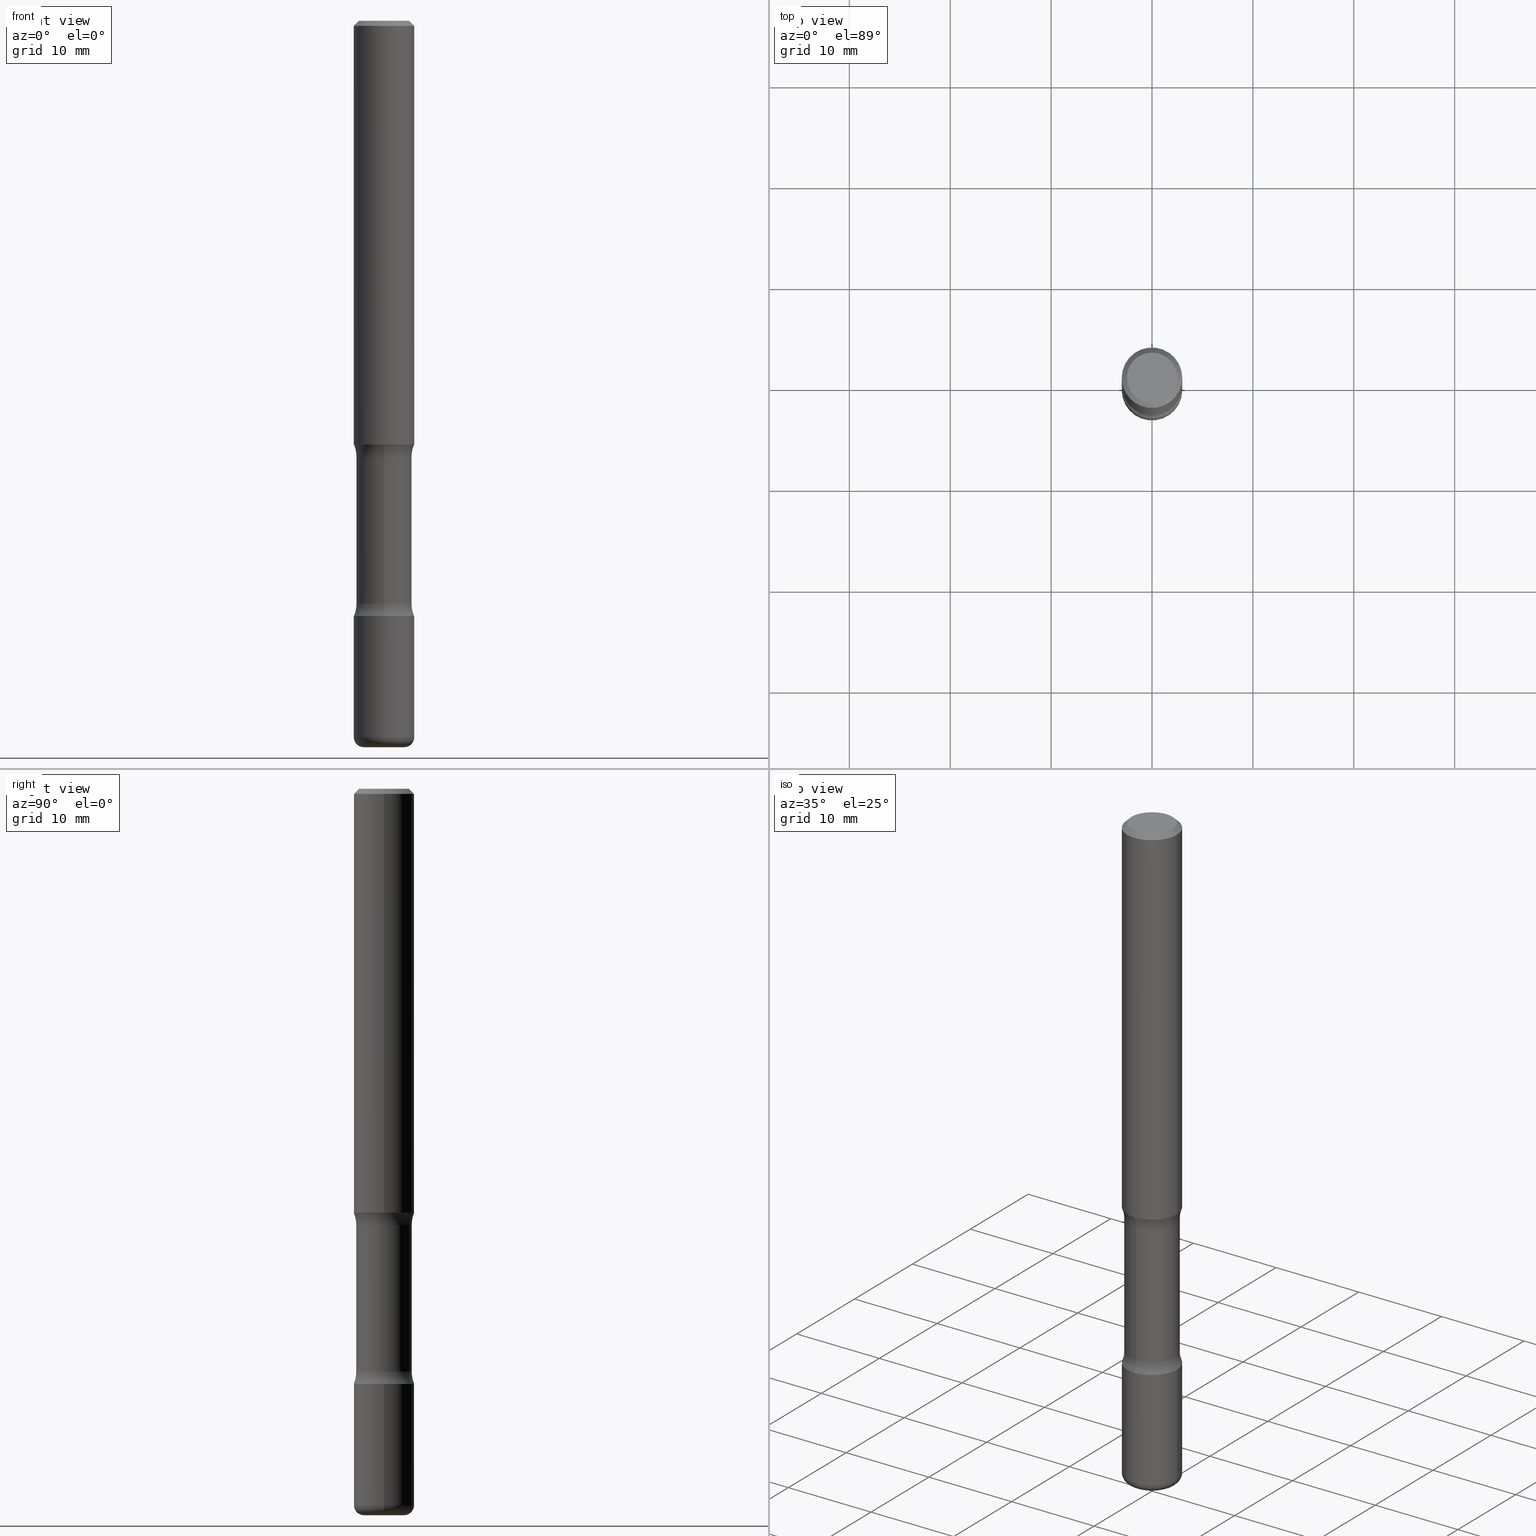
[diagram: canonical four-view strip — front | top / right | iso, engineering-drawing reading convention]
A machine part, canonical four-view strip (front | top / right | iso — engineering-drawing reading convention). The complete STEP part file that produces these views, byte-faithful:
ISO-10303-21;
HEADER;
FILE_DESCRIPTION (( 'STEP AP203' ),
    '1' );
FILE_NAME ('44772.STEP',
    '2024-03-02T03:04:16',
    ( '' ),
    ( '' ),
    'SwSTEP 2.0',
    'SolidWorks 2023',
    '' );
FILE_SCHEMA (( 'CONFIG_CONTROL_DESIGN' ));
ENDSEC;

DATA;
#1 = ORIENTED_EDGE ( 'NONE', *, *, #16, .T. ) ;
#2 = AXIS2_PLACEMENT_3D ( 'NONE', #12, #393, #352 ) ;
#3 = CIRCLE ( 'NONE', #70, 0.1250000000000000278 ) ;
#4 = FACE_OUTER_BOUND ( 'NONE', #400, .T. ) ;
#5 = SHAPE_DEFINITION_REPRESENTATION ( #55, #185 ) ;
#6 = ORIENTED_EDGE ( 'NONE', *, *, #87, .F. ) ;
#7 = FACE_OUTER_BOUND ( 'NONE', #532, .T. ) ;
#8 = PERSON_AND_ORGANIZATION ( #521, #34 ) ;
#9 = CLOSED_SHELL ( 'NONE', ( #470, #161, #240, #389, #392, #497 ) ) ;
#10 = AXIS2_PLACEMENT_3D ( 'NONE', #500, #410, #189 ) ;
#11 = DIRECTION ( 'NONE',  ( 1.000000000000000000, -6.982962677686266711E-15, 0.000000000000000000 ) ) ;
#12 = CARTESIAN_POINT ( 'NONE',  ( 6.967694114101516369E-29, -9.845730853203571031E-15, -2.834599999999998676 ) ) ;
#13 = CARTESIAN_POINT ( 'NONE',  ( 4.043582671027119838E-29, -5.773164393777136338E-15, -1.653499999999998638 ) ) ;
#14 = DIRECTION ( 'NONE',  ( 6.982962677686265922E-15, 1.000000000000000000, -2.313165108945183485E-15 ) ) ;
#15 = CLOSED_SHELL ( 'NONE', ( #286, #91, #530, #109, #23, #227 ) ) ;
#16 = EDGE_CURVE ( 'NONE', #522, #451, #472, .T. ) ;
#17 = CARTESIAN_POINT ( 'NONE',  ( -0.1181000000000009265, 8.391509709326849024E-16, -5.809262341591088625E-30 ) ) ;
#18 = ORIENTED_EDGE ( 'NONE', *, *, #249, .T. ) ;
#19 = CIRCLE ( 'NONE', #377, 0.1181000000000010514 ) ;
#20 = AXIS2_PLACEMENT_3D ( 'NONE', #35, #287, #551 ) ;
#21 = CARTESIAN_POINT ( 'NONE',  ( -0.1181000000000010514, -2.082346039344310577E-15, -1.653499999999998638 ) ) ;
#22 = CYLINDRICAL_SURFACE ( 'NONE', #518, 0.1181000000000001077 ) ;
#23 = ADVANCED_FACE ( 'NONE', ( #260 ), #49, .F. ) ;
#24 = EDGE_LOOP ( 'NONE', ( #477, #280 ) ) ;
#25 =( CONVERSION_BASED_UNIT ( 'INCH', #335 ) LENGTH_UNIT ( ) NAMED_UNIT ( #315 ) );
#26 = CARTESIAN_POINT ( 'NONE',  ( 1.627379452034826207E-15, 0.2330499999999940952, -1.702607000519273717 ) ) ;
#27 = VERTEX_POINT ( 'NONE', #99 ) ;
#28 = APPROVAL ( #45, 'UNSPECIFIED' ) ;
#29 = DIRECTION ( 'NONE',  ( 2.515355941959131519E-29, -3.391398982686043410E-15, -1.000000000000000000 ) ) ;
#30 = DIRECTION ( 'NONE',  ( -2.445468806185136597E-29, 3.491481338843145583E-15, 1.000000000000000000 ) ) ;
#31 = AXIS2_PLACEMENT_3D ( 'NONE', #533, #103, #58 ) ;
#32 = ORIENTED_EDGE ( 'NONE', *, *, #252, .F. ) ;
#33 = VECTOR ( 'NONE', #290, 39.37007874015748143 ) ;
#34 = ORGANIZATION ( 'UNSPECIFIED', 'UNSPECIFIED', '' ) ;
#35 = CARTESIAN_POINT ( 'NONE',  ( 4.890937612370273159E-31, -6.982962677686291609E-17, -0.02000000000000000042 ) ) ;
#36 = ORIENTED_EDGE ( 'NONE', *, *, #353, .F. ) ;
#37 = CARTESIAN_POINT ( 'NONE',  ( 7.545091173240708723E-16, 0.1080499999999901678, -2.834599999999999120 ) ) ;
#38 = PLANE ( 'NONE',  #536 ) ;
#39 = CC_DESIGN_PERSON_AND_ORGANIZATION_ASSIGNMENT ( #527, #170, ( #417 ) ) ;
#40 = CARTESIAN_POINT ( 'NONE',  ( 0.1181000000000007877, -8.800544403136861623E-16, -0.02000000000000000042 ) ) ;
#41 = VECTOR ( 'NONE', #374, 39.37007874015748143 ) ;
#42 = AXIS2_PLACEMENT_3D ( 'NONE', #250, #296, #164 ) ;
#43 = PLANE ( 'NONE',  #330 ) ;
#44 = EDGE_CURVE ( 'NONE', #172, #160, #421, .T. ) ;
#45 = APPROVAL_STATUS ( 'not_yet_approved' ) ;
#46 = ORIENTED_EDGE ( 'NONE', *, *, #548, .F. ) ;
#47 = DIRECTION ( 'NONE',  ( -2.445468806185136877E-29, 3.491481338843145188E-15, 1.000000000000000000 ) ) ;
#48 = COORDINATED_UNIVERSAL_TIME_OFFSET ( 5, 0, .BEHIND. ) ;
#49 = PLANE ( 'NONE',  #274 ) ;
#50 = AXIS2_PLACEMENT_3D ( 'NONE', #495, #75, #269 ) ;
#51 = CARTESIAN_POINT ( 'NONE',  ( 5.536399814345542936E-29, -7.972704777866051071E-15, -2.273692999480724453 ) ) ;
#52 = APPLICATION_CONTEXT ( 'configuration controlled 3d designs of mechanical parts and assemblies' ) ;
#53 = ORIENTED_EDGE ( 'NONE', *, *, #373, .T. ) ;
#54 = DIRECTION ( 'NONE',  ( 1.000000000000000000, -6.982962677686269077E-15, 0.000000000000000000 ) ) ;
#55 = PRODUCT_DEFINITION_SHAPE ( 'NONE', 'NONE',  #362 ) ;
#56 = DIRECTION ( 'NONE',  ( -2.445468806185136877E-29, 3.491481338843145188E-15, 1.000000000000000000 ) ) ;
#57 = DIRECTION ( 'NONE',  ( 6.982962677686265922E-15, 1.000000000000000000, -3.391398982686043804E-15 ) ) ;
#58 = DIRECTION ( 'NONE',  ( 6.982962677686265922E-15, 1.000000000000000000, -2.528318365260770920E-15 ) ) ;
#59 = VECTOR ( 'NONE', #358, 39.37007874015748143 ) ;
#60 = AXIS2_PLACEMENT_3D ( 'NONE', #326, #511, #237 ) ;
#61 = LINE ( 'NONE', #314, #367 ) ;
#62 = ORIENTED_EDGE ( 'NONE', *, *, #124, .F. ) ;
#63 = CARTESIAN_POINT ( 'NONE',  ( 5.680334943006831795E-29, -8.110012853864854101E-15, -2.322799999999998644 ) ) ;
#64 = LINE ( 'NONE', #17, #59 ) ;
#65 = ORIENTED_EDGE ( 'NONE', *, *, #349, .F. ) ;
#66 = AXIS2_PLACEMENT_3D ( 'NONE', #509, #123, #297 ) ;
#67 = EDGE_CURVE ( 'NONE', #198, #361, #347, .T. ) ;
#68 = DIRECTION ( 'NONE',  ( 6.982962677686265922E-15, 1.000000000000000000, -3.391398982686043804E-15 ) ) ;
#69 = ORIENTED_EDGE ( 'NONE', *, *, #539, .T. ) ;
#70 = AXIS2_PLACEMENT_3D ( 'NONE', #420, #121, #281 ) ;
#71 = EDGE_CURVE ( 'NONE', #160, #550, #77, .T. ) ;
#72 = DIRECTION ( 'NONE',  ( 1.000000000000000000, -6.982962677686266711E-15, 0.000000000000000000 ) ) ;
#73 = ORIENTED_EDGE ( 'NONE', *, *, #252, .T. ) ;
#74 = DIRECTION ( 'NONE',  ( 2.438088387897960049E-29, -3.491481338843145188E-15, -1.000000000000000000 ) ) ;
#75 = DIRECTION ( 'NONE',  ( 2.515355941959131519E-29, -3.391398982686043410E-15, -1.000000000000000000 ) ) ;
#76 = EDGE_LOOP ( 'NONE', ( #327, #437, #447, #482 ) ) ;
#77 = CIRCLE ( 'NONE', #31, 0.1080500000000000071 ) ;
#78 = ORIENTED_EDGE ( 'NONE', *, *, #71, .T. ) ;
#79 = TOROIDAL_SURFACE ( 'NONE', #425, 0.2330500000000000627, 0.1250000000000000278 ) ;
#80 = LINE ( 'NONE', #195, #127 ) ;
#81 = DIRECTION ( 'NONE',  ( 1.000000000000000000, -6.982962677686265922E-15, 4.876176775795935793E-29 ) ) ;
#82 = CARTESIAN_POINT ( 'NONE',  ( 6.835574407048691801E-29, -9.759388638334358515E-15, -2.795199999999999019 ) ) ;
#83 = ADVANCED_FACE ( 'NONE', ( #177 ), #391, .F. ) ;
#84 = DIRECTION ( 'NONE',  ( 1.000000000000000000, -6.982962677686268288E-15, 0.000000000000000000 ) ) ;
#85 = CARTESIAN_POINT ( 'NONE',  ( -8.102248135367786879E-16, -0.1181000000000059780, -1.653499999999998193 ) ) ;
#86 = DIRECTION ( 'NONE',  ( 2.515355941959131519E-29, -3.391398982686043410E-15, -1.000000000000000000 ) ) ;
#87 = EDGE_CURVE ( 'NONE', #205, #414, #440, .T. ) ;
#88 = VECTOR ( 'NONE', #47, 39.37007874015748143 ) ;
#89 = DATE_AND_TIME ( #291, #493 ) ;
#90 = DIRECTION ( 'NONE',  ( 1.000000000000000000, -6.982962677686268288E-15, 0.000000000000000000 ) ) ;
#91 = ADVANCED_FACE ( 'NONE', ( #398 ), #403, .T. ) ;
#92 = DIRECTION ( 'NONE',  ( 6.982962677686265922E-15, 1.000000000000000000, -2.528318365260770525E-15 ) ) ;
#93 = CALENDAR_DATE ( 2024, 1, 3 ) ;
#94 = ORIENTED_EDGE ( 'NONE', *, *, #102, .T. ) ;
#95 = PLANE ( 'NONE',  #242 ) ;
#96 = DIRECTION ( 'NONE',  ( 2.438088387897960049E-29, -3.491481338843145188E-15, -1.000000000000000000 ) ) ;
#97 = PERSON_AND_ORGANIZATION_ROLE ( 'design_owner' ) ;
#98 = VERTEX_POINT ( 'NONE', #494 ) ;
#99 = CARTESIAN_POINT ( 'NONE',  ( -0.09810000000000086706, 7.199434520694596262E-16, -4.695363739110943904E-17 ) ) ;
#100 = CIRCLE ( 'NONE', #197, 0.1181000000000007877 ) ;
#101 = CONICAL_SURFACE ( 'NONE', #20, 0.1181000000000007877, 0.7853981633974476129 ) ;
#102 = EDGE_CURVE ( 'NONE', #235, #172, #126, .T. ) ;
#103 = DIRECTION ( 'NONE',  ( 2.515355941959131519E-29, -3.391398982686043410E-15, -1.000000000000000000 ) ) ;
#104 = FACE_OUTER_BOUND ( 'NONE', #145, .T. ) ;
#105 = AXIS2_PLACEMENT_3D ( 'NONE', #63, #346, #305 ) ;
#106 = CARTESIAN_POINT ( 'NONE',  ( 4.120328796601531988E-29, -6.006690946356916109E-15, -1.702607000519273051 ) ) ;
#107 = CIRCLE ( 'NONE', #513, 0.1181000000000000660 ) ;
#108 = DIRECTION ( 'NONE',  ( 2.515355941959131519E-29, -3.391398982686043410E-15, -1.000000000000000000 ) ) ;
#109 = ADVANCED_FACE ( 'NONE', ( #4 ), #43, .F. ) ;
#110 = CC_DESIGN_APPROVAL ( #443, ( #362 ) ) ;
#111 = VERTEX_POINT ( 'NONE', #85 ) ;
#112 = CARTESIAN_POINT ( 'NONE',  ( 4.115981327510148751E-29, -6.012916769538350398E-15, -1.702607000519273051 ) ) ;
#113 = ORIENTED_EDGE ( 'NONE', *, *, #506, .T. ) ;
#114 = FACE_OUTER_BOUND ( 'NONE', #118, .T. ) ;
#115 = EDGE_CURVE ( 'NONE', #465, #205, #275, .T. ) ;
#116 = CYLINDRICAL_SURFACE ( 'NONE', #253, 0.1181000000000009265 ) ;
#117 = TOROIDAL_SURFACE ( 'NONE', #385, 0.07870000000000014484, 0.03940000000000033753 ) ;
#118 = EDGE_LOOP ( 'NONE', ( #552, #325, #239, #542 ) ) ;
#119 = DIRECTION ( 'NONE',  ( 1.000000000000000000, -6.982962677686261189E-15, 4.883557194083111219E-29 ) ) ;
#120 = ORIENTED_EDGE ( 'NONE', *, *, #543, .T. ) ;
#121 = DIRECTION ( 'NONE',  ( 1.000000000000000000, -6.860497997771530774E-15, 4.842024534995332075E-29 ) ) ;
#122 = ORIENTED_EDGE ( 'NONE', *, *, #467, .T. ) ;
#123 = DIRECTION ( 'NONE',  ( -2.445468806185136597E-29, 3.491481338843145583E-15, 1.000000000000000000 ) ) ;
#124 = EDGE_CURVE ( 'NONE', #361, #198, #180, .T. ) ;
#125 = AXIS2_PLACEMENT_3D ( 'NONE', #490, #268, #246 ) ;
#126 = CIRCLE ( 'NONE', #173, 0.1080500000000000210 ) ;
#127 = VECTOR ( 'NONE', #505, 39.37007874015748854 ) ;
#128 = APPROVAL_ROLE ( '' ) ;
#129 = PRODUCT_RELATED_PRODUCT_CATEGORY ( 'detail', '', ( #382 ) ) ;
#130 = DIRECTION ( 'NONE',  ( -2.445468806185136597E-29, 3.491481338843145583E-15, 1.000000000000000000 ) ) ;
#131 = COORDINATED_UNIVERSAL_TIME_OFFSET ( 5, 0, .BEHIND. ) ;
#132 = CIRCLE ( 'NONE', #60, 0.1250000000000000278 ) ;
#133 = VERTEX_POINT ( 'NONE', #422 ) ;
#134 = APPROVAL_DATE_TIME ( #520, #28 ) ;
#135 = ORIENTED_EDGE ( 'NONE', *, *, #424, .F. ) ;
#136 = APPROVAL_DATE_TIME ( #390, #443 ) ;
#137 = VERTEX_POINT ( 'NONE', #288 ) ;
#138 = CIRCLE ( 'NONE', #42, 0.1181000000000001354 ) ;
#139 = AXIS2_PLACEMENT_3D ( 'NONE', #202, #74, #462 ) ;
#140 = FACE_OUTER_BOUND ( 'NONE', #332, .T. ) ;
#141 = ADVANCED_FACE ( 'NONE', ( #339 ), #38, .F. ) ;
#142 = DIRECTION ( 'NONE',  ( -1.000000000000000000, 6.982962677686265922E-15, -4.876176775795935793E-29 ) ) ;
#143 = ORIENTED_EDGE ( 'NONE', *, *, #303, .T. ) ;
#144 = DIRECTION ( 'NONE',  ( 0.7071067811865469066, -7.319954787623252890E-15, -0.7071067811865479058 ) ) ;
#145 = EDGE_LOOP ( 'NONE', ( #294, #62 ) ) ;
#146 = FACE_OUTER_BOUND ( 'NONE', #211, .T. ) ;
#147 = ORIENTED_EDGE ( 'NONE', *, *, #454, .T. ) ;
#148 = CARTESIAN_POINT ( 'NONE',  ( 4.890937612370273159E-31, -6.982962677686291609E-17, -0.02000000000000000042 ) ) ;
#149 = ORIENTED_EDGE ( 'NONE', *, *, #486, .T. ) ;
#150 = DIRECTION ( 'NONE',  ( 7.105427357601001859E-15, 1.000000000000000000, -3.491481338843145583E-15 ) ) ;
#151 = DIRECTION ( 'NONE',  ( -2.445468806185136877E-29, 3.491481338843145188E-15, 1.000000000000000000 ) ) ;
#152 = CIRCLE ( 'NONE', #557, 0.1181000000000000660 ) ;
#153 = EDGE_LOOP ( 'NONE', ( #459, #1, #53, #496 ) ) ;
#154 = DIRECTION ( 'NONE',  ( 6.982962677686265922E-15, 1.000000000000000000, -2.313165108945182302E-15 ) ) ;
#155 = VERTEX_POINT ( 'NONE', #519 ) ;
#156 = CARTESIAN_POINT ( 'NONE',  ( 8.246878922347888889E-16, 0.1180999999999942929, -1.653499999999999082 ) ) ;
#157 = EDGE_CURVE ( 'NONE', #535, #111, #138, .T. ) ;
#158 = ORIENTED_EDGE ( 'NONE', *, *, #115, .T. ) ;
#159 = CARTESIAN_POINT ( 'NONE',  ( -0.1181000000000003020, -8.920237667401677951E-15, -2.795199999999999019 ) ) ;
#160 = VERTEX_POINT ( 'NONE', #471 ) ;
#161 = ADVANCED_FACE ( 'NONE', ( #475 ), #117, .T. ) ;
#162 = CIRCLE ( 'NONE', #405, 0.1080500000000000071 ) ;
#163 = LOCAL_TIME ( 22, 4, 16.00000000000000000, #431 ) ;
#164 = DIRECTION ( 'NONE',  ( 6.982962677686265922E-15, 1.000000000000000000, -2.313165108945182302E-15 ) ) ;
#165 = EDGE_CURVE ( 'NONE', #137, #98, #152, .T. ) ;
#166 = PERSON_AND_ORGANIZATION ( #521, #34 ) ;
#167 = SECURITY_CLASSIFICATION_LEVEL ( 'unclassified' ) ;
#168 = VECTOR ( 'NONE', #56, 39.37007874015748143 ) ;
#169 = DIRECTION ( 'NONE',  ( -2.445468806185136597E-29, 3.491481338843145583E-15, 1.000000000000000000 ) ) ;
#170 = PERSON_AND_ORGANIZATION_ROLE ( 'creator' ) ;
#171 = CIRCLE ( 'NONE', #397, 0.03940000000000033753 ) ;
#172 = VERTEX_POINT ( 'NONE', #348 ) ;
#173 = AXIS2_PLACEMENT_3D ( 'NONE', #106, #473, #92 ) ;
#174 = EDGE_LOOP ( 'NONE', ( #456, #46, #69, #229 ) ) ;
#175 = DIRECTION ( 'NONE',  ( 6.982962677686265922E-15, 1.000000000000000000, -3.391398982686043804E-15 ) ) ;
#176 = CALENDAR_DATE ( 2024, 1, 3 ) ;
#177 = FACE_OUTER_BOUND ( 'NONE', #388, .T. ) ;
#178 = CLOSED_SHELL ( 'NONE', ( #378, #183, #254, #338, #141, #83, #201, #179 ) ) ;
#179 = ADVANCED_FACE ( 'NONE', ( #219 ), #261, .T. ) ;
#180 = CIRCLE ( 'NONE', #302, 0.07870000000000014484 ) ;
#181 = DIRECTION ( 'NONE',  ( -1.000000000000000000, 6.982962677686266711E-15, 0.000000000000000000 ) ) ;
#182 = CARTESIAN_POINT ( 'NONE',  ( -7.757508110979757408E-16, -0.1080500000000060301, -1.702607000519272828 ) ) ;
#183 = ADVANCED_FACE ( 'NONE', ( #7 ), #222, .F. ) ;
#184 = DIRECTION ( 'NONE',  ( -2.445468806185136597E-29, 3.491481338843145583E-15, 1.000000000000000000 ) ) ;
#185 = ADVANCED_BREP_SHAPE_REPRESENTATION ( '44772', ( #371, #191, #375, #445 ), #453 ) ;
#186 = CARTESIAN_POINT ( 'NONE',  ( 4.115981327510148751E-29, -6.012916769538350398E-15, -1.702607000519273051 ) ) ;
#187 = EDGE_LOOP ( 'NONE', ( #341, #94, #355, #32 ) ) ;
#188 = CIRCLE ( 'NONE', #463, 0.1181000000000007877 ) ;
#189 = DIRECTION ( 'NONE',  ( 6.982962677686265922E-15, 1.000000000000000000, -2.528318365260770525E-15 ) ) ;
#190 = CC_DESIGN_APPROVAL ( #426, ( #417 ) ) ;
#191 = MANIFOLD_SOLID_BREP ( 'Body-Move/Copy2[2]', #15 ) ;
#192 = CARTESIAN_POINT ( 'NONE',  ( 6.835574407048691801E-29, -9.759388638334358515E-15, -2.795199999999999019 ) ) ;
#193 = ORIENTED_EDGE ( 'NONE', *, *, #157, .T. ) ;
#194 = ORIENTED_EDGE ( 'NONE', *, *, #560, .T. ) ;
#195 = CARTESIAN_POINT ( 'NONE',  ( -0.1181000000000007877, 7.548582654578905850E-16, -0.02000000000000000042 ) ) ;
#196 = CARTESIAN_POINT ( 'NONE',  ( -0.07870000000000014484, -9.128996768721627656E-15, -2.834600000000000009 ) ) ;
#197 = AXIS2_PLACEMENT_3D ( 'NONE', #220, #184, #11 ) ;
#198 = VERTEX_POINT ( 'NONE', #523 ) ;
#199 = CARTESIAN_POINT ( 'NONE',  ( 5.680334943006831795E-29, -8.110012853864854101E-15, -2.322799999999998644 ) ) ;
#200 = AXIS2_PLACEMENT_3D ( 'NONE', #409, #366, #549 ) ;
#201 = ADVANCED_FACE ( 'NONE', ( #140 ), #79, .F. ) ;
#202 = CARTESIAN_POINT ( 'NONE',  ( 5.680334943006831795E-29, -8.110012853864854101E-15, -2.322799999999998644 ) ) ;
#203 = ORIENTED_EDGE ( 'NONE', *, *, #265, .T. ) ;
#204 =( NAMED_UNIT ( * ) SI_UNIT ( $, .STERADIAN. ) SOLID_ANGLE_UNIT ( ) );
#205 = VERTEX_POINT ( 'NONE', #306 ) ;
#206 = DIRECTION ( 'NONE',  ( 2.515355941959131519E-29, -3.391398982686043015E-15, -1.000000000000000000 ) ) ;
#207 = EDGE_CURVE ( 'NONE', #198, #451, #492, .T. ) ;
#208 = AXIS2_PLACEMENT_3D ( 'NONE', #186, #319, #68 ) ;
#209 = APPROVAL_DATE_TIME ( #428, #426 ) ;
#210 = DATE_AND_TIME ( #176, #313 ) ;
#211 = EDGE_LOOP ( 'NONE', ( #474, #507, #344, #6 ) ) ;
#212 = CYLINDRICAL_SURFACE ( 'NONE', #284, 0.1181000000000009265 ) ;
#213 = AXIS2_PLACEMENT_3D ( 'NONE', #112, #364, #458 ) ;
#214 = APPROVAL_ROLE ( '' ) ;
#215 = LOCAL_TIME ( 22, 4, 16.00000000000000000, #337 ) ;
#216 = ORIENTED_EDGE ( 'NONE', *, *, #373, .F. ) ;
#217 = APPROVAL_STATUS ( 'not_yet_approved' ) ;
#218 = DIRECTION ( 'NONE',  ( -2.445468806185136597E-29, 3.491481338843145583E-15, 1.000000000000000000 ) ) ;
#219 = FACE_OUTER_BOUND ( 'NONE', #187, .T. ) ;
#220 = CARTESIAN_POINT ( 'NONE',  ( 4.890937612370273159E-31, -6.982962677686291609E-17, -0.02000000000000000042 ) ) ;
#221 = CC_DESIGN_PERSON_AND_ORGANIZATION_ASSIGNMENT ( #166, #516, ( #417 ) ) ;
#222 = TOROIDAL_SURFACE ( 'NONE', #452, 0.2330500000000000627, 0.1250000000000000278 ) ;
#223 = SECURITY_CLASSIFICATION ( '', '', #167 ) ;
#224 = CARTESIAN_POINT ( 'NONE',  ( 0.1181000000000009265, -8.246878922347544749E-16, 5.758764772215045282E-30 ) ) ;
#225 = DIRECTION ( 'NONE',  ( 1.000000000000000000, -6.982962677686269077E-15, 0.000000000000000000 ) ) ;
#226 = ORIENTED_EDGE ( 'NONE', *, *, #207, .F. ) ;
#227 = ADVANCED_FACE ( 'NONE', ( #489 ), #212, .T. ) ;
#228 = DIRECTION ( 'NONE',  ( -2.445468806185136597E-29, 3.491481338843145583E-15, 1.000000000000000000 ) ) ;
#229 = ORIENTED_EDGE ( 'NONE', *, *, #295, .T. ) ;
#230 = DIRECTION ( 'NONE',  ( -2.445468806185136597E-29, 3.491481338843145583E-15, 1.000000000000000000 ) ) ;
#231 = EDGE_CURVE ( 'NONE', #414, #372, #100, .T. ) ;
#232 = CIRCLE ( 'NONE', #444, 0.1181000000000000660 ) ;
#233 = DIRECTION ( 'NONE',  ( 2.515355941959131519E-29, -3.391398982686043410E-15, -1.000000000000000000 ) ) ;
#234 = CC_DESIGN_SECURITY_CLASSIFICATION ( #223, ( #417 ) ) ;
#235 = VERTEX_POINT ( 'NONE', #182 ) ;
#236 = ORIENTED_EDGE ( 'NONE', *, *, #71, .F. ) ;
#237 = DIRECTION ( 'NONE',  ( -6.982962677686265133E-15, -1.000000000000000000, 0.000000000000000000 ) ) ;
#238 = FACE_OUTER_BOUND ( 'NONE', #153, .T. ) ;
#239 = ORIENTED_EDGE ( 'NONE', *, *, #207, .T. ) ;
#240 = ADVANCED_FACE ( 'NONE', ( #104 ), #95, .T. ) ;
#241 = FACE_OUTER_BOUND ( 'NONE', #257, .T. ) ;
#242 = AXIS2_PLACEMENT_3D ( 'NONE', #266, #298, #142 ) ;
#243 = ORIENTED_EDGE ( 'NONE', *, *, #87, .T. ) ;
#244 = LOCAL_TIME ( 22, 4, 16.00000000000000000, #559 ) ;
#245 = CARTESIAN_POINT ( 'NONE',  ( -0.07870000000000014484, -9.200191505291158146E-15, -2.795199999999999019 ) ) ;
#246 = DIRECTION ( 'NONE',  ( 1.000000000000000000, -6.982962677686265133E-15, 4.877161320636724192E-29 ) ) ;
#247 = CARTESIAN_POINT ( 'NONE',  ( 4.043582671027119838E-29, -5.773164393777136338E-15, -1.653499999999998638 ) ) ;
#248 = FACE_OUTER_BOUND ( 'NONE', #174, .T. ) ;
#249 = EDGE_CURVE ( 'NONE', #522, #98, #430, .T. ) ;
#250 = CARTESIAN_POINT ( 'NONE',  ( 3.996807211053585264E-29, -5.840149514753085094E-15, -1.653499999999998638 ) ) ;
#251 = PERSON_AND_ORGANIZATION ( #521, #34 ) ;
#252 = EDGE_CURVE ( 'NONE', #550, #160, #162, .T. ) ;
#253 = AXIS2_PLACEMENT_3D ( 'NONE', #449, #317, #455 ) ;
#254 = ADVANCED_FACE ( 'NONE', ( #450 ), #262, .F. ) ;
#255 = CARTESIAN_POINT ( 'NONE',  ( 6.850286386810286674E-16, 0.09810000000000086706, -3.659911380360678144E-16 ) ) ;
#256 = PERSON_AND_ORGANIZATION_ROLE ( 'creator' ) ;
#257 = EDGE_LOOP ( 'NONE', ( #147, #18, #329, #216 ) ) ;
#258 = DIRECTION ( 'NONE',  ( 2.515355941959131519E-29, -3.391398982686043410E-15, -1.000000000000000000 ) ) ;
#259 = APPROVAL_ROLE ( '' ) ;
#260 = FACE_OUTER_BOUND ( 'NONE', #499, .T. ) ;
#261 = CYLINDRICAL_SURFACE ( 'NONE', #2, 0.1080500000000000210 ) ;
#262 = TOROIDAL_SURFACE ( 'NONE', #208, 0.2330500000000000904, 0.1250000000000000278 ) ;
#263 = CC_DESIGN_APPROVAL ( #28, ( #223 ) ) ;
#264 = ORIENTED_EDGE ( 'NONE', *, *, #454, .F. ) ;
#265 = EDGE_CURVE ( 'NONE', #235, #111, #501, .T. ) ;
#266 = CARTESIAN_POINT ( 'NONE',  ( -2.055165349161050565E-28, -4.925500292857757505E-14, -2.834599999999999120 ) ) ;
#267 = AXIS2_PLACEMENT_3D ( 'NONE', #394, #230, #479 ) ;
#268 = DIRECTION ( 'NONE',  ( -2.445468806185136597E-29, 3.491481338843145583E-15, 1.000000000000000000 ) ) ;
#269 = DIRECTION ( 'NONE',  ( 6.982962677686265922E-15, 1.000000000000000000, -5.056636730521541050E-15 ) ) ;
#270 = EDGE_LOOP ( 'NONE', ( #36, #158, #243, #546 ) ) ;
#271 = CC_DESIGN_DATE_AND_TIME_ASSIGNMENT ( #89, #387, ( #223 ) ) ;
#272 = CARTESIAN_POINT ( 'NONE',  ( 5.556813357458885632E-29, -7.943471422261023875E-15, -2.273692999480724453 ) ) ;
#273 = EDGE_LOOP ( 'NONE', ( #282, #122, #236, #554 ) ) ;
#274 = AXIS2_PLACEMENT_3D ( 'NONE', #247, #525, #81 ) ;
#275 = CIRCLE ( 'NONE', #350, 0.1181000000000010514 ) ;
#276 = DIRECTION ( 'NONE',  ( -2.445468806185136597E-29, 3.491481338843145583E-15, 1.000000000000000000 ) ) ;
#277 = DIRECTION ( 'NONE',  ( 6.982962677686265922E-15, 1.000000000000000000, -2.313165108945183485E-15 ) ) ;
#278 = CC_DESIGN_DATE_AND_TIME_ASSIGNMENT ( #210, #481, ( #362 ) ) ;
#279 = DIRECTION ( 'NONE',  ( 1.000000000000000000, -6.982962677686266711E-15, 4.876176775795935793E-29 ) ) ;
#280 = ORIENTED_EDGE ( 'NONE', *, *, #486, .F. ) ;
#281 = DIRECTION ( 'NONE',  ( 6.860497997771529985E-15, 1.000000000000000000, 0.000000000000000000 ) ) ;
#282 = ORIENTED_EDGE ( 'NONE', *, *, #309, .T. ) ;
#283 = CARTESIAN_POINT ( 'NONE',  ( 5.680334943006831795E-29, -8.110012853864854101E-15, -2.322799999999998644 ) ) ;
#284 = AXIS2_PLACEMENT_3D ( 'NONE', #483, #441, #342 ) ;
#285 = EDGE_LOOP ( 'NONE', ( #359, #316, #300, #193 ) ) ;
#286 = ADVANCED_FACE ( 'NONE', ( #146 ), #116, .T. ) ;
#287 = DIRECTION ( 'NONE',  ( 2.445468806185136597E-29, -3.491481338843145583E-15, -1.000000000000000000 ) ) ;
#288 = CARTESIAN_POINT ( 'NONE',  ( 0.1181000000000000660, -8.934700746099602364E-15, -2.322799999999998644 ) ) ;
#289 = DIRECTION ( 'NONE',  ( -1.000000000000000000, 6.982962677686265922E-15, -4.876176775795935793E-29 ) ) ;
#290 = DIRECTION ( 'NONE',  ( 2.515355941959131799E-29, -3.391398982686043015E-15, -1.000000000000000000 ) ) ;
#291 = CALENDAR_DATE ( 2024, 1, 3 ) ;
#292 = CIRCLE ( 'NONE', #10, 0.1080500000000000210 ) ;
#293 = PERSON_AND_ORGANIZATION ( #521, #34 ) ;
#294 = ORIENTED_EDGE ( 'NONE', *, *, #67, .F. ) ;
#295 = EDGE_CURVE ( 'NONE', #372, #414, #188, .T. ) ;
#296 = DIRECTION ( 'NONE',  ( 2.515355941959131519E-29, -3.391398982686043410E-15, -1.000000000000000000 ) ) ;
#297 = DIRECTION ( 'NONE',  ( 1.000000000000000000, -6.982962677686265133E-15, 0.000000000000000000 ) ) ;
#298 = DIRECTION ( 'NONE',  ( 2.438088387897960049E-29, -3.491481338843145188E-15, -1.000000000000000000 ) ) ;
#299 = MECHANICAL_CONTEXT ( 'NONE', #526, 'mechanical' ) ;
#300 = ORIENTED_EDGE ( 'NONE', *, *, #349, .T. ) ;
#301 = DIRECTION ( 'NONE',  ( 2.515355941959131519E-29, -3.391398982686043410E-15, -1.000000000000000000 ) ) ;
#302 = AXIS2_PLACEMENT_3D ( 'NONE', #510, #169, #515 ) ;
#303 = EDGE_CURVE ( 'NONE', #514, #133, #528, .T. ) ;
#304 = AXIS2_PLACEMENT_3D ( 'NONE', #360, #233, #14 ) ;
#305 = DIRECTION ( 'NONE',  ( -6.982962677686265922E-15, -1.000000000000000000, 3.391398982686043015E-15 ) ) ;
#306 = CARTESIAN_POINT ( 'NONE',  ( 0.1181000000000010514, -6.597852286011891701E-15, -1.653499999999998638 ) ) ;
#307 = CARTESIAN_POINT ( 'NONE',  ( 6.931925878012387517E-29, -9.896953003084780885E-15, -2.834600000000000009 ) ) ;
#308 = CARTESIAN_POINT ( 'NONE',  ( 0.07870000000000014484, -1.030894780106826677E-14, -2.795199999999999019 ) ) ;
#309 = EDGE_CURVE ( 'NONE', #172, #235, #292, .T. ) ;
#310 = DIRECTION ( 'NONE',  ( -2.445468806185136597E-29, 3.491481338843145583E-15, 1.000000000000000000 ) ) ;
#311 = AXIS2_PLACEMENT_3D ( 'NONE', #307, #218, #488 ) ;
#312 = AXIS2_PLACEMENT_3D ( 'NONE', #308, #487, #433 ) ;
#313 = LOCAL_TIME ( 22, 4, 16.00000000000000000, #131 ) ;
#314 = CARTESIAN_POINT ( 'NONE',  ( 0.1181000000000001077, -8.246878922347488542E-16, 5.758764772215005345E-30 ) ) ;
#315 = DIMENSIONAL_EXPONENTS ( 1.000000000000000000, 0.000000000000000000, 0.000000000000000000, 0.000000000000000000, 0.000000000000000000, 0.000000000000000000, 0.000000000000000000 ) ;
#316 = ORIENTED_EDGE ( 'NONE', *, *, #309, .F. ) ;
#317 = DIRECTION ( 'NONE',  ( -2.445468806185136597E-29, 3.491481338843145583E-15, 1.000000000000000000 ) ) ;
#318 = ORIENTED_EDGE ( 'NONE', *, *, #548, .T. ) ;
#319 = DIRECTION ( 'NONE',  ( 2.515355941959131519E-29, -3.391398982686043410E-15, -1.000000000000000000 ) ) ;
#320 = ORIENTED_EDGE ( 'NONE', *, *, #102, .F. ) ;
#321 = DIRECTION ( 'NONE',  ( -2.445468806185136597E-29, 3.491481338843145583E-15, 1.000000000000000000 ) ) ;
#322 = VECTOR ( 'NONE', #144, 39.37007874015748854 ) ;
#323 = APPROVAL_PERSON_ORGANIZATION ( #558, #426, #128 ) ;
#324 = CARTESIAN_POINT ( 'NONE',  ( 0.000000000000000000, 0.000000000000000000, 0.000000000000000000 ) ) ;
#325 = ORIENTED_EDGE ( 'NONE', *, *, #124, .T. ) ;
#326 = CARTESIAN_POINT ( 'NONE',  ( 1.627379452034840012E-15, 0.2330499999999920968, -2.273692999480725341 ) ) ;
#327 = ORIENTED_EDGE ( 'NONE', *, *, #406, .F. ) ;
#328 =( LENGTH_UNIT ( ) NAMED_UNIT ( * ) SI_UNIT ( $, .METRE. ) );
#329 = ORIENTED_EDGE ( 'NONE', *, *, #165, .F. ) ;
#330 = AXIS2_PLACEMENT_3D ( 'NONE', #255, #96, #289 ) ;
#331 = AXIS2_PLACEMENT_3D ( 'NONE', #399, #498, #354 ) ;
#332 = EDGE_LOOP ( 'NONE', ( #491, #404, #113, #78 ) ) ;
#333 = EDGE_CURVE ( 'NONE', #155, #414, #413, .T. ) ;
#334 = CIRCLE ( 'NONE', #351, 0.1181000000000001354 ) ;
#335 = LENGTH_MEASURE_WITH_UNIT ( LENGTH_MEASURE( 0.02539999999999999897 ), #328 );
#336 = PERSON_AND_ORGANIZATION ( #521, #34 ) ;
#337 = COORDINATED_UNIVERSAL_TIME_OFFSET ( 5, 0, .BEHIND. ) ;
#338 = ADVANCED_FACE ( 'NONE', ( #503 ), #396, .F. ) ;
#339 = FACE_OUTER_BOUND ( 'NONE', #24, .T. ) ;
#340 = CALENDAR_DATE ( 2024, 1, 3 ) ;
#341 = ORIENTED_EDGE ( 'NONE', *, *, #467, .F. ) ;
#342 = DIRECTION ( 'NONE',  ( 1.000000000000000000, -6.982962677686265922E-15, 4.876176775795935793E-29 ) ) ;
#343 = UNCERTAINTY_MEASURE_WITH_UNIT (LENGTH_MEASURE( 1.000000000000000082E-05 ), #25, 'distance_accuracy_value', 'NONE');
#344 = ORIENTED_EDGE ( 'NONE', *, *, #231, .F. ) ;
#345 = APPROVAL_STATUS ( 'not_yet_approved' ) ;
#346 = DIRECTION ( 'NONE',  ( -2.515355941959131519E-29, 3.391398982686043015E-15, 1.000000000000000000 ) ) ;
#347 = CIRCLE ( 'NONE', #311, 0.07870000000000014484 ) ;
#348 = CARTESIAN_POINT ( 'NONE',  ( 7.545091173240424733E-16, 0.1080499999999940119, -1.702607000519273273 ) ) ;
#349 = EDGE_CURVE ( 'NONE', #172, #535, #512, .T. ) ;
#350 = AXIS2_PLACEMENT_3D ( 'NONE', #466, #130, #84 ) ;
#351 = AXIS2_PLACEMENT_3D ( 'NONE', #457, #86, #154 ) ;
#352 = DIRECTION ( 'NONE',  ( 6.982962677686265922E-15, 1.000000000000000000, -5.056636730521541050E-15 ) ) ;
#353 = EDGE_CURVE ( 'NONE', #465, #372, #64, .T. ) ;
#354 = DIRECTION ( 'NONE',  ( 6.860497997771531562E-15, 1.000000000000000000, 0.000000000000000000 ) ) ;
#355 = ORIENTED_EDGE ( 'NONE', *, *, #44, .T. ) ;
#356 = AXIS2_PLACEMENT_3D ( 'NONE', #192, #228, #119 ) ;
#357 = AXIS2_PLACEMENT_3D ( 'NONE', #401, #537, #181 ) ;
#358 = DIRECTION ( 'NONE',  ( -2.445468806185136877E-29, 3.491481338843145188E-15, 1.000000000000000000 ) ) ;
#359 = ORIENTED_EDGE ( 'NONE', *, *, #265, .F. ) ;
#360 = CARTESIAN_POINT ( 'NONE',  ( 5.680334943006831795E-29, -8.110012853864854101E-15, -2.322799999999998644 ) ) ;
#361 = VERTEX_POINT ( 'NONE', #196 ) ;
#362 = PRODUCT_DEFINITION ( 'UNKNOWN', '', #417, #439 ) ;
#363 = APPLICATION_PROTOCOL_DEFINITION ( 'international standard', 'config_control_design', 1994, #526 ) ;
#364 = DIRECTION ( 'NONE',  ( 2.515355941959131519E-29, -3.391398982686043410E-15, -1.000000000000000000 ) ) ;
#365 = ORIENTED_EDGE ( 'NONE', *, *, #165, .T. ) ;
#366 = DIRECTION ( 'NONE',  ( -2.445468806185136597E-29, 3.491481338843145583E-15, 1.000000000000000000 ) ) ;
#367 = VECTOR ( 'NONE', #151, 39.37007874015748143 ) ;
#368 = CARTESIAN_POINT ( 'NONE',  ( 5.680334943006831795E-29, -8.110012853864854101E-15, -2.322799999999998644 ) ) ;
#369 = EDGE_LOOP ( 'NONE', ( #365, #411 ) ) ;
#370 = LINE ( 'NONE', #412, #33 ) ;
#371 = MANIFOLD_SOLID_BREP ( 'Body-Move/Copy2[1]', #9 ) ;
#372 = VERTEX_POINT ( 'NONE', #545 ) ;
#373 = EDGE_CURVE ( 'NONE', #451, #137, #61, .T. ) ;
#374 = DIRECTION ( 'NONE',  ( 2.515355941959131799E-29, -3.391398982686043015E-15, -1.000000000000000000 ) ) ;
#375 = MANIFOLD_SOLID_BREP ( 'Body-Move/Copy2[4]', #178 ) ;
#376 = CARTESIAN_POINT ( 'NONE',  ( 0.000000000000000000, 0.000000000000000000, 0.000000000000000000 ) ) ;
#377 = AXIS2_PLACEMENT_3D ( 'NONE', #13, #448, #90 ) ;
#378 = ADVANCED_FACE ( 'NONE', ( #446 ), #407, .T. ) ;
#379 = CARTESIAN_POINT ( 'NONE',  ( 4.043582671027119838E-29, -5.773164393777136338E-15, -1.653499999999998638 ) ) ;
#380 = PERSON_AND_ORGANIZATION ( #521, #34 ) ;
#381 = CC_DESIGN_PERSON_AND_ORGANIZATION_ASSIGNMENT ( #380, #97, ( #382 ) ) ;
#382 = PRODUCT ( '44772', '44772', '', ( #299 ) ) ;
#383 = CALENDAR_DATE ( 2024, 1, 3 ) ;
#384 = EDGE_LOOP ( 'NONE', ( #540, #120, #264, #226 ) ) ;
#385 = AXIS2_PLACEMENT_3D ( 'NONE', #82, #478, #531 ) ;
#386 = CIRCLE ( 'NONE', #200, 0.09810000000000086706 ) ;
#387 = DATE_TIME_ROLE ( 'classification_date' ) ;
#388 = EDGE_LOOP ( 'NONE', ( #429, #143 ) ) ;
#389 = ADVANCED_FACE ( 'NONE', ( #114 ), #434, .T. ) ;
#390 = DATE_AND_TIME ( #93, #215 ) ;
#391 = PLANE ( 'NONE',  #105 ) ;
#392 = ADVANCED_FACE ( 'NONE', ( #238 ), #22, .T. ) ;
#393 = DIRECTION ( 'NONE',  ( 2.515355941959131519E-29, -3.391398982686043410E-15, -1.000000000000000000 ) ) ;
#394 = CARTESIAN_POINT ( 'NONE',  ( 6.835574407048691801E-29, -9.759388638334358515E-15, -2.795199999999999019 ) ) ;
#395 = EDGE_CURVE ( 'NONE', #98, #137, #232, .T. ) ;
#396 = TOROIDAL_SURFACE ( 'NONE', #213, 0.2330500000000000904, 0.1250000000000000278 ) ;
#397 = AXIS2_PLACEMENT_3D ( 'NONE', #245, #150, #423 ) ;
#398 = FACE_OUTER_BOUND ( 'NONE', #76, .T. ) ;
#399 = CARTESIAN_POINT ( 'NONE',  ( -1.598839058380614634E-15, -0.2330500000000061134, -1.702607000519272162 ) ) ;
#400 = EDGE_LOOP ( 'NONE', ( #318, #408 ) ) ;
#401 = CARTESIAN_POINT ( 'NONE',  ( 4.890937612370273159E-31, -6.982962677686291609E-17, -0.02000000000000000042 ) ) ;
#402 = DIRECTION ( 'NONE',  ( -1.000000000000000000, 6.982962677686265922E-15, -4.883557194083112340E-29 ) ) ;
#403 = CONICAL_SURFACE ( 'NONE', #357, 0.1181000000000007877, 0.7853981633974476129 ) ;
#404 = ORIENTED_EDGE ( 'NONE', *, *, #480, .F. ) ;
#405 = AXIS2_PLACEMENT_3D ( 'NONE', #272, #108, #541 ) ;
#406 = EDGE_CURVE ( 'NONE', #155, #27, #484, .T. ) ;
#407 = CYLINDRICAL_SURFACE ( 'NONE', #50, 0.1080500000000000210 ) ;
#408 = ORIENTED_EDGE ( 'NONE', *, *, #406, .T. ) ;
#409 = CARTESIAN_POINT ( 'NONE',  ( 1.148236555768741665E-45, -1.639377487418492057E-31, -4.695363739110452099E-17 ) ) ;
#410 = DIRECTION ( 'NONE',  ( 2.515355941959131519E-29, -3.391398982686043410E-15, -1.000000000000000000 ) ) ;
#411 = ORIENTED_EDGE ( 'NONE', *, *, #395, .T. ) ;
#412 = CARTESIAN_POINT ( 'NONE',  ( -7.412768086591444935E-16, -0.1080500000000098743, -2.834599999999998232 ) ) ;
#413 = LINE ( 'NONE', #534, #322 ) ;
#414 = VERTEX_POINT ( 'NONE', #40 ) ;
#415 = PLANE ( 'NONE',  #139 ) ;
#416 = AXIS2_PLACEMENT_3D ( 'NONE', #376, #321, #502 ) ;
#417 = PRODUCT_DEFINITION_FORMATION_WITH_SPECIFIED_SOURCE ( 'ANY', '', #382, .NOT_KNOWN. ) ;
#418 = ORIENTED_EDGE ( 'NONE', *, *, #506, .F. ) ;
#419 = CC_DESIGN_PERSON_AND_ORGANIZATION_ASSIGNMENT ( #8, #256, ( #362 ) ) ;
#420 = CARTESIAN_POINT ( 'NONE',  ( -1.598839058380600434E-15, -0.2330500000000080285, -2.273692999480723564 ) ) ;
#421 = LINE ( 'NONE', #37, #41 ) ;
#422 = CARTESIAN_POINT ( 'NONE',  ( 8.246878922348052578E-16, 0.1180999999999919753, -2.322799999999999088 ) ) ;
#423 = DIRECTION ( 'NONE',  ( -1.000000000000000000, 7.105427357601014480E-15, 0.000000000000000000 ) ) ;
#424 = EDGE_CURVE ( 'NONE', #205, #465, #19, .T. ) ;
#425 = AXIS2_PLACEMENT_3D ( 'NONE', #51, #301, #57 ) ;
#426 = APPROVAL ( #345, 'UNSPECIFIED' ) ;
#427 = PERSON_AND_ORGANIZATION_ROLE ( 'classification_officer' ) ;
#428 = DATE_AND_TIME ( #383, #163 ) ;
#429 = ORIENTED_EDGE ( 'NONE', *, *, #480, .T. ) ;
#430 = LINE ( 'NONE', #442, #88 ) ;
#431 = COORDINATED_UNIVERSAL_TIME_OFFSET ( 5, 0, .BEHIND. ) ;
#432 = EDGE_LOOP ( 'NONE', ( #320, #203, #149, #65 ) ) ;
#433 = DIRECTION ( 'NONE',  ( 1.000000000000000000, -6.982962677686268288E-15, 0.000000000000000000 ) ) ;
#434 = TOROIDAL_SURFACE ( 'NONE', #356, 0.07870000000000014484, 0.03940000000000033753 ) ;
#435 = DIRECTION ( 'NONE',  ( 0.000000000000000000, 0.000000000000000000, 1.000000000000000000 ) ) ;
#436 = CARTESIAN_POINT ( 'NONE',  ( 0.1181000000000003020, -1.058407653056910836E-14, -2.795199999999999019 ) ) ;
#437 = ORIENTED_EDGE ( 'NONE', *, *, #333, .T. ) ;
#438 = DIRECTION ( 'NONE',  ( -2.445468806185136597E-29, 3.491481338843145583E-15, 1.000000000000000000 ) ) ;
#439 = DESIGN_CONTEXT ( 'detailed design', #52, 'design' ) ;
#440 = LINE ( 'NONE', #224, #168 ) ;
#441 = DIRECTION ( 'NONE',  ( -2.445468806185136597E-29, 3.491481338843145583E-15, 1.000000000000000000 ) ) ;
#442 = CARTESIAN_POINT ( 'NONE',  ( -0.1181000000000001077, 8.391509709326790846E-16, -5.809262341591049389E-30 ) ) ;
#443 = APPROVAL ( #217, 'UNSPECIFIED' ) ;
#444 = AXIS2_PLACEMENT_3D ( 'NONE', #368, #310, #225 ) ;
#445 = AXIS2_PLACEMENT_3D ( 'NONE', #517, #435, #524 ) ;
#446 = FACE_OUTER_BOUND ( 'NONE', #273, .T. ) ;
#447 = ORIENTED_EDGE ( 'NONE', *, *, #231, .T. ) ;
#448 = DIRECTION ( 'NONE',  ( -2.445468806185136597E-29, 3.491481338843145583E-15, 1.000000000000000000 ) ) ;
#449 = CARTESIAN_POINT ( 'NONE',  ( 0.000000000000000000, 0.000000000000000000, 0.000000000000000000 ) ) ;
#450 = FACE_OUTER_BOUND ( 'NONE', #432, .T. ) ;
#451 = VERTEX_POINT ( 'NONE', #436 ) ;
#452 = AXIS2_PLACEMENT_3D ( 'NONE', #529, #258, #175 ) ;
#453 =( GEOMETRIC_REPRESENTATION_CONTEXT ( 3 ) GLOBAL_UNCERTAINTY_ASSIGNED_CONTEXT ( ( #343 ) ) GLOBAL_UNIT_ASSIGNED_CONTEXT ( ( #25, #508, #204 ) ) REPRESENTATION_CONTEXT ( 'NONE', 'WORKASPACE' ) );
#454 = EDGE_CURVE ( 'NONE', #451, #522, #555, .T. ) ;
#455 = DIRECTION ( 'NONE',  ( 1.000000000000000000, -6.982962677686265922E-15, 4.876176775795935793E-29 ) ) ;
#456 = ORIENTED_EDGE ( 'NONE', *, *, #333, .F. ) ;
#457 = CARTESIAN_POINT ( 'NONE',  ( 3.996807211053585264E-29, -5.840149514753085094E-15, -1.653499999999998638 ) ) ;
#458 = DIRECTION ( 'NONE',  ( 6.982962677686265922E-15, 1.000000000000000000, -3.391398982686043804E-15 ) ) ;
#459 = ORIENTED_EDGE ( 'NONE', *, *, #249, .F. ) ;
#460 = ORIENTED_EDGE ( 'NONE', *, *, #115, .F. ) ;
#461 = CC_DESIGN_PERSON_AND_ORGANIZATION_ASSIGNMENT ( #336, #427, ( #223 ) ) ;
#462 = DIRECTION ( 'NONE',  ( -1.000000000000000000, 6.982962677686265922E-15, -4.876176775795935793E-29 ) ) ;
#463 = AXIS2_PLACEMENT_3D ( 'NONE', #148, #276, #72 ) ;
#464 = APPROVAL_PERSON_ORGANIZATION ( #251, #443, #259 ) ;
#465 = VERTEX_POINT ( 'NONE', #21 ) ;
#466 = CARTESIAN_POINT ( 'NONE',  ( 4.043582671027119838E-29, -5.773164393777136338E-15, -1.653499999999998638 ) ) ;
#467 = EDGE_CURVE ( 'NONE', #235, #550, #370, .T. ) ;
#468 = DIRECTION ( 'NONE',  ( 6.982962677686265922E-15, 1.000000000000000000, -3.391398982686043015E-15 ) ) ;
#469 = FACE_OUTER_BOUND ( 'NONE', #369, .T. ) ;
#470 = ADVANCED_FACE ( 'NONE', ( #241 ), #553, .T. ) ;
#471 = CARTESIAN_POINT ( 'NONE',  ( 7.545091173240566728E-16, 0.1080499999999920691, -2.273692999480724897 ) ) ;
#472 = CIRCLE ( 'NONE', #66, 0.1181000000000001354 ) ;
#473 = DIRECTION ( 'NONE',  ( 2.515355941959131519E-29, -3.391398982686043410E-15, -1.000000000000000000 ) ) ;
#474 = ORIENTED_EDGE ( 'NONE', *, *, #424, .T. ) ;
#475 = FACE_OUTER_BOUND ( 'NONE', #384, .T. ) ;
#476 = APPLICATION_PROTOCOL_DEFINITION ( 'international standard', 'config_control_design', 1994, #52 ) ;
#477 = ORIENTED_EDGE ( 'NONE', *, *, #157, .F. ) ;
#478 = DIRECTION ( 'NONE',  ( -2.445468806185136597E-29, 3.491481338843145583E-15, 1.000000000000000000 ) ) ;
#479 = DIRECTION ( 'NONE',  ( 1.000000000000000000, -6.982962677686265133E-15, 0.000000000000000000 ) ) ;
#480 = EDGE_CURVE ( 'NONE', #133, #514, #107, .T. ) ;
#481 = DATE_TIME_ROLE ( 'creation_date' ) ;
#482 = ORIENTED_EDGE ( 'NONE', *, *, #539, .F. ) ;
#483 = CARTESIAN_POINT ( 'NONE',  ( 0.000000000000000000, 0.000000000000000000, 0.000000000000000000 ) ) ;
#484 = CIRCLE ( 'NONE', #125, 0.09810000000000086706 ) ;
#485 = APPROVAL_PERSON_ORGANIZATION ( #293, #28, #214 ) ;
#486 = EDGE_CURVE ( 'NONE', #111, #535, #334, .T. ) ;
#487 = DIRECTION ( 'NONE',  ( -6.982962677686266711E-15, -1.000000000000000000, 3.491481338843145583E-15 ) ) ;
#488 = DIRECTION ( 'NONE',  ( 1.000000000000000000, -6.982962677686257244E-15, 0.000000000000000000 ) ) ;
#489 = FACE_OUTER_BOUND ( 'NONE', #270, .T. ) ;
#490 = CARTESIAN_POINT ( 'NONE',  ( 1.148236555768741665E-45, -1.639377487418492057E-31, -4.695363739110452099E-17 ) ) ;
#491 = ORIENTED_EDGE ( 'NONE', *, *, #560, .F. ) ;
#492 = CIRCLE ( 'NONE', #312, 0.03940000000000033753 ) ;
#493 = LOCAL_TIME ( 22, 4, 16.00000000000000000, #48 ) ;
#494 = CARTESIAN_POINT ( 'NONE',  ( -0.1181000000000000660, -8.095549775166928111E-15, -2.322799999999998644 ) ) ;
#495 = CARTESIAN_POINT ( 'NONE',  ( 6.967694114101516369E-29, -9.845730853203571031E-15, -2.834599999999998676 ) ) ;
#496 = ORIENTED_EDGE ( 'NONE', *, *, #395, .F. ) ;
#497 = ADVANCED_FACE ( 'NONE', ( #469 ), #415, .F. ) ;
#498 = DIRECTION ( 'NONE',  ( 1.000000000000000000, -6.860497997771530774E-15, 4.842024534995332075E-29 ) ) ;
#499 = EDGE_LOOP ( 'NONE', ( #135, #460 ) ) ;
#500 = CARTESIAN_POINT ( 'NONE',  ( 4.120328796601531988E-29, -6.006690946356916109E-15, -1.702607000519273051 ) ) ;
#501 = CIRCLE ( 'NONE', #331, 0.1250000000000000278 ) ;
#502 = DIRECTION ( 'NONE',  ( 1.000000000000000000, -6.982962677686266711E-15, 4.876176775795935793E-29 ) ) ;
#503 = FACE_OUTER_BOUND ( 'NONE', #285, .T. ) ;
#504 = ORIENTED_EDGE ( 'NONE', *, *, #303, .F. ) ;
#505 = DIRECTION ( 'NONE',  ( -0.7071067811865469066, 2.468850131082251144E-15, -0.7071067811865479058 ) ) ;
#506 = EDGE_CURVE ( 'NONE', #133, #160, #132, .T. ) ;
#507 = ORIENTED_EDGE ( 'NONE', *, *, #353, .T. ) ;
#508 =( NAMED_UNIT ( * ) PLANE_ANGLE_UNIT ( ) SI_UNIT ( $, .RADIAN. ) );
#509 = CARTESIAN_POINT ( 'NONE',  ( 6.835574407048691801E-29, -9.759388638334358515E-15, -2.795199999999999019 ) ) ;
#510 = CARTESIAN_POINT ( 'NONE',  ( 6.931925878012387517E-29, -9.896953003084780885E-15, -2.834600000000000009 ) ) ;
#511 = DIRECTION ( 'NONE',  ( -1.000000000000000000, 6.982962677686265922E-15, -4.883557194083112340E-29 ) ) ;
#512 = CIRCLE ( 'NONE', #547, 0.1250000000000000278 ) ;
#513 = AXIS2_PLACEMENT_3D ( 'NONE', #283, #29, #277 ) ;
#514 = VERTEX_POINT ( 'NONE', #544 ) ;
#515 = DIRECTION ( 'NONE',  ( 1.000000000000000000, -6.982962677686257244E-15, 0.000000000000000000 ) ) ;
#516 = PERSON_AND_ORGANIZATION_ROLE ( 'design_supplier' ) ;
#517 = CARTESIAN_POINT ( 'NONE',  ( 0.000000000000000000, 0.000000000000000000, 0.000000000000000000 ) ) ;
#518 = AXIS2_PLACEMENT_3D ( 'NONE', #324, #30, #279 ) ;
#519 = CARTESIAN_POINT ( 'NONE',  ( 0.09810000000000086706, -7.765346469475396748E-16, -4.695363739109941188E-17 ) ) ;
#520 = DATE_AND_TIME ( #340, #244 ) ;
#521 = PERSON ( 'UNSPECIFIED', 'UNSPECIFIED', 'UNSPECIFIED', ('UNSPECIFIED'), ('UNSPECIFIED'), ('UNSPECIFIED') ) ;
#522 = VERTEX_POINT ( 'NONE', #159 ) ;
#523 = CARTESIAN_POINT ( 'NONE',  ( 0.07870000000000014484, -1.044651216581868914E-14, -2.834600000000000009 ) ) ;
#524 = DIRECTION ( 'NONE',  ( 1.000000000000000000, 0.000000000000000000, 0.000000000000000000 ) ) ;
#525 = DIRECTION ( 'NONE',  ( -2.438088387897960049E-29, 3.491481338843145188E-15, 1.000000000000000000 ) ) ;
#526 = APPLICATION_CONTEXT ( 'configuration controlled 3d designs of mechanical parts and assemblies' ) ;
#527 = PERSON_AND_ORGANIZATION ( #521, #34 ) ;
#528 = CIRCLE ( 'NONE', #304, 0.1181000000000000660 ) ;
#529 = CARTESIAN_POINT ( 'NONE',  ( 5.536399814345542936E-29, -7.972704777866051071E-15, -2.273692999480724453 ) ) ;
#530 = ADVANCED_FACE ( 'NONE', ( #248 ), #101, .T. ) ;
#531 = DIRECTION ( 'NONE',  ( 1.000000000000000000, -6.982962677686261189E-15, 4.883557194083111219E-29 ) ) ;
#532 = EDGE_LOOP ( 'NONE', ( #504, #194, #73, #418 ) ) ;
#533 = CARTESIAN_POINT ( 'NONE',  ( 5.556813357458885632E-29, -7.943471422261023875E-15, -2.273692999480724453 ) ) ;
#534 = CARTESIAN_POINT ( 'NONE',  ( 0.1181000000000007877, -8.800544403136861623E-16, -0.02000000000000000042 ) ) ;
#535 = VERTEX_POINT ( 'NONE', #156 ) ;
#536 = AXIS2_PLACEMENT_3D ( 'NONE', #379, #206, #468 ) ;
#537 = DIRECTION ( 'NONE',  ( 2.445468806185136597E-29, -3.491481338843145583E-15, -1.000000000000000000 ) ) ;
#538 = DIRECTION ( 'NONE',  ( -6.982962677686265922E-15, -1.000000000000000000, 0.000000000000000000 ) ) ;
#539 = EDGE_CURVE ( 'NONE', #27, #372, #80, .T. ) ;
#540 = ORIENTED_EDGE ( 'NONE', *, *, #67, .T. ) ;
#541 = DIRECTION ( 'NONE',  ( 6.982962677686265922E-15, 1.000000000000000000, -2.528318365260770920E-15 ) ) ;
#542 = ORIENTED_EDGE ( 'NONE', *, *, #16, .F. ) ;
#543 = EDGE_CURVE ( 'NONE', #361, #522, #171, .T. ) ;
#544 = CARTESIAN_POINT ( 'NONE',  ( -8.102248135367618260E-16, -0.1181000000000081984, -2.322799999999998644 ) ) ;
#545 = CARTESIAN_POINT ( 'NONE',  ( -0.1181000000000007877, 7.548582654578905850E-16, -0.02000000000000000042 ) ) ;
#546 = ORIENTED_EDGE ( 'NONE', *, *, #295, .F. ) ;
#547 = AXIS2_PLACEMENT_3D ( 'NONE', #26, #402, #538 ) ;
#548 = EDGE_CURVE ( 'NONE', #27, #155, #386, .T. ) ;
#549 = DIRECTION ( 'NONE',  ( 1.000000000000000000, -6.982962677686265133E-15, 4.877161320636724192E-29 ) ) ;
#550 = VERTEX_POINT ( 'NONE', #556 ) ;
#551 = DIRECTION ( 'NONE',  ( -1.000000000000000000, 6.982962677686266711E-15, 0.000000000000000000 ) ) ;
#552 = ORIENTED_EDGE ( 'NONE', *, *, #543, .F. ) ;
#553 = CYLINDRICAL_SURFACE ( 'NONE', #416, 0.1181000000000001077 ) ;
#554 = ORIENTED_EDGE ( 'NONE', *, *, #44, .F. ) ;
#555 = CIRCLE ( 'NONE', #267, 0.1181000000000001354 ) ;
#556 = CARTESIAN_POINT ( 'NONE',  ( -7.757508110979601608E-16, -0.1080500000000079452, -2.273692999480724009 ) ) ;
#557 = AXIS2_PLACEMENT_3D ( 'NONE', #199, #438, #54 ) ;
#558 = PERSON_AND_ORGANIZATION ( #521, #34 ) ;
#559 = COORDINATED_UNIVERSAL_TIME_OFFSET ( 5, 0, .BEHIND. ) ;
#560 = EDGE_CURVE ( 'NONE', #514, #550, #3, .T. ) ;
ENDSEC;
END-ISO-10303-21;
